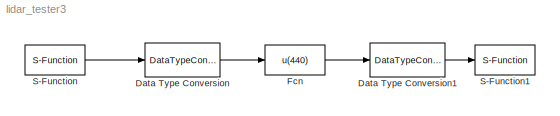
MODEL lidar_tester3
KIND model
BLOCK [DataTypeConversion] Data Type Conversion
  OutDataType = fixdt(1, 16)
  OutDataTypeMode = double
  OutDataTypeStr = double
  OutScaling = 2^0
  RndMeth = Floor
  SaturateOnIntegerOverflow = off
BLOCK [DataTypeConversion] Data Type Conversion1
  OutDataType = fixdt(1, 16)
  OutDataTypeMode = uint32
  OutDataTypeStr = uint32
  OutScaling = 2^0
  RndMeth = Floor
  SaturateOnIntegerOverflow = off
BLOCK [Fcn] Fcn
  Expr = u(440)
BLOCK [S-Function] S-Function
  EnableBusSupport = off
  FunctionName = lidarOnly2
  Ports = [0, 1]
BLOCK [S-Function] S-Function1
  EnableBusSupport = off
  FunctionName = printOut
  Ports = [1]
LINE Data Type Conversion1:1 -> S-Function1:1
LINE Data Type Conversion:1 -> Fcn:1
LINE Fcn:1 -> Data Type Conversion1:1
LINE S-Function:1 -> Data Type Conversion:1
